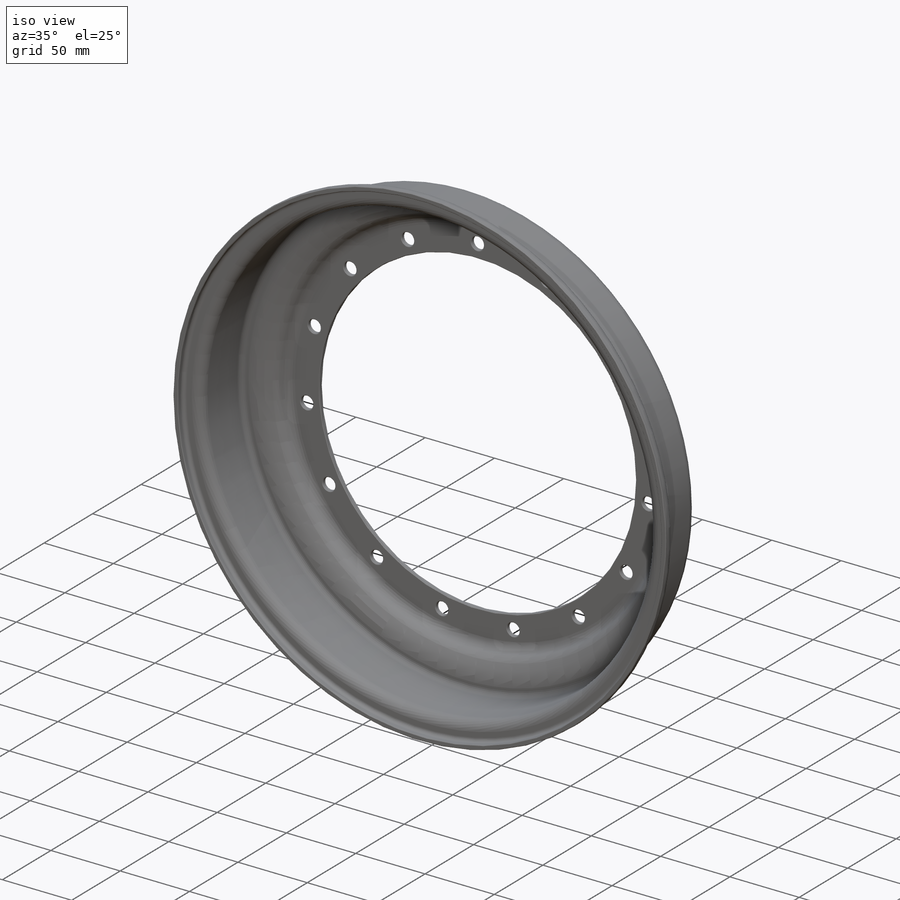
[diagram: iso view]
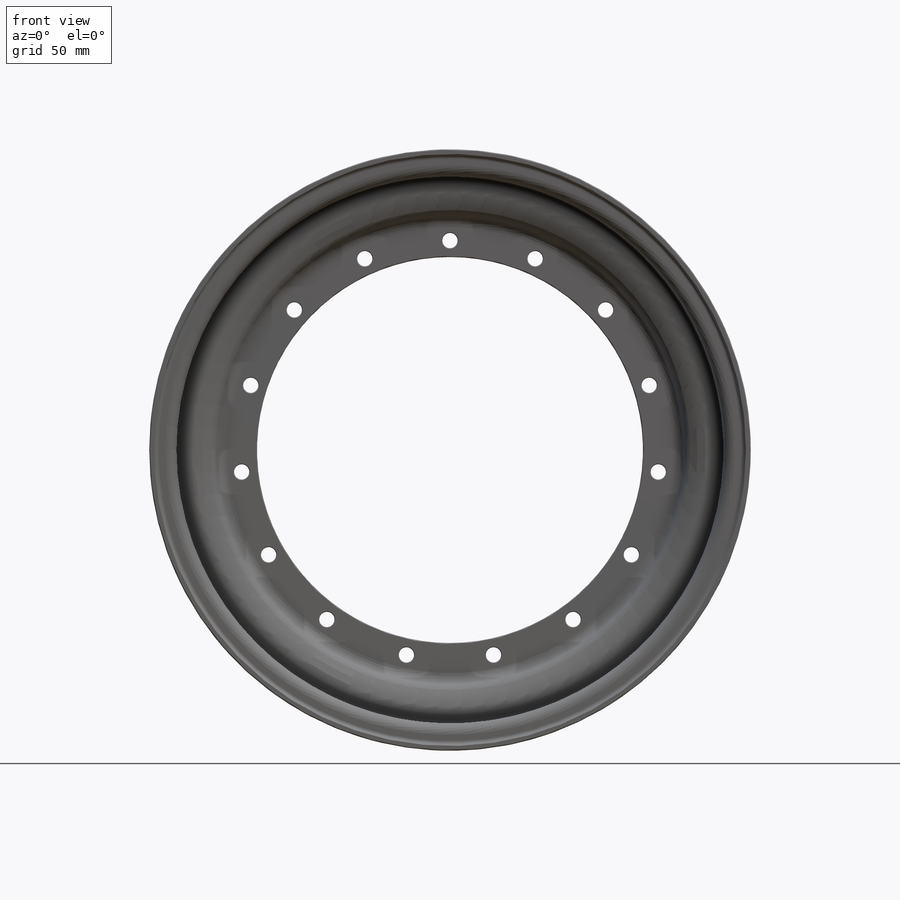
[diagram: front view]
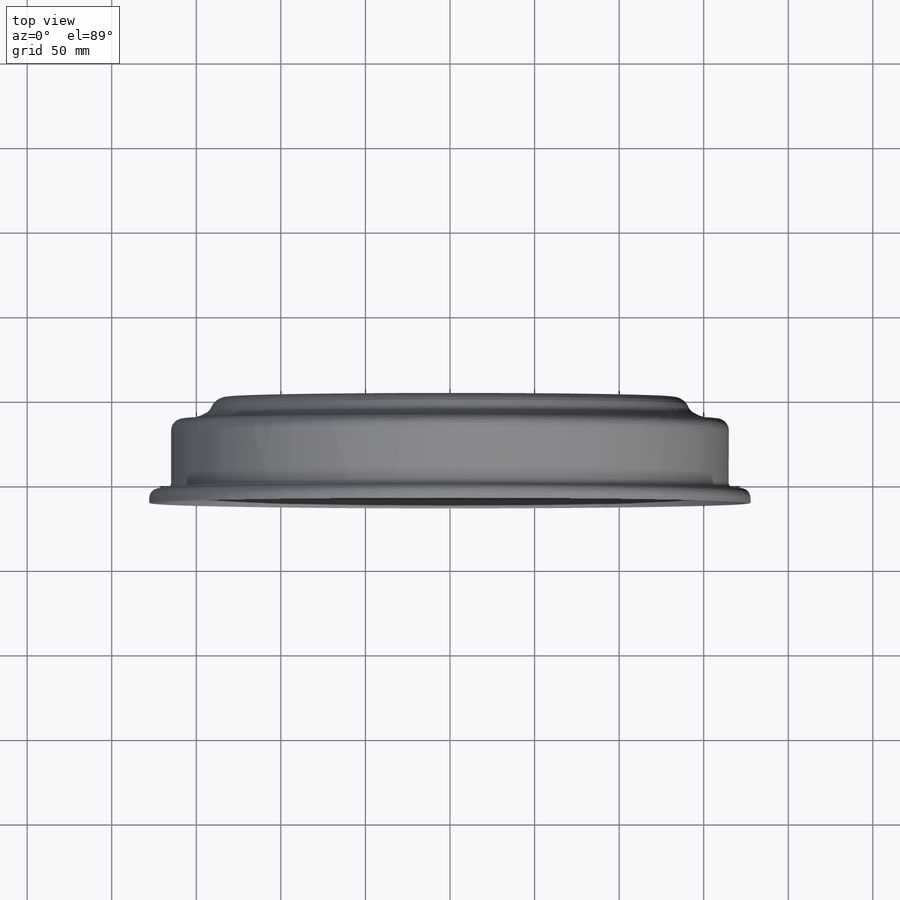
[diagram: top view]
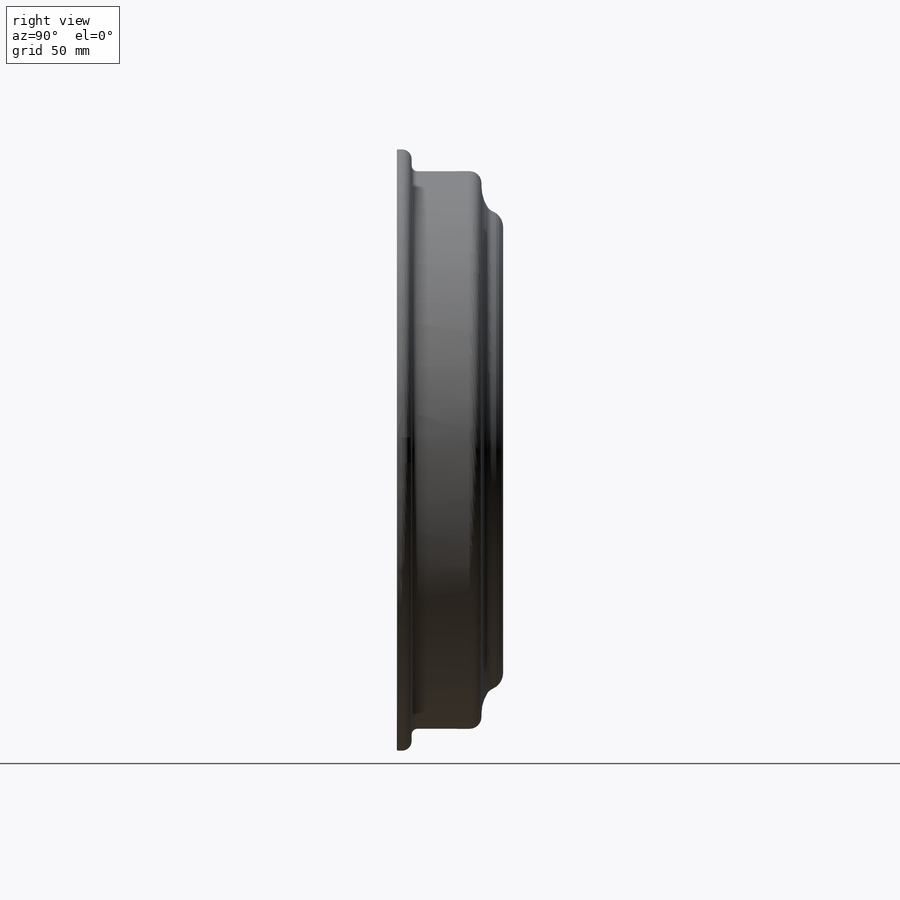
[diagram: right view]
SOLIDWORKS PART (.sldprt)
format: sldprt  version: not decoded by parser v0  size: 446,464 bytes
history: native  units: mm
features: sketch x2, material x1, revolve x1, cut_extrude x1, pattern_circular x1, chamfer x1 (+13 scaffold rows collapsed)
feature tree (20):
  scaffold x13  (default folders/planes/origin — collapsed)
  material  "6061-T6 (SS)"
  sketch  "Sketch1"  dims[c1.D1=114.3mm c1.D2=~17.51076mm c1.D3=11.2776mm c1.D4=~3.76428mm c2.D3=~9.38276mm c2.D5=~6.25856mm c2.D4=~2.89052mm c2.D6=~2.41046mm c2.D7=~1.82626mm c2.D8=~12.96416mm c2.D9=~9.87806mm c2.D10=30.861mm c2.D11=~4.84886mm c2.D12=3.81mm c2.D13=~8.08228mm c2.D14=3.048mm c2.D15=3.175mm]
  revolve  "Inner Rim"  Angle=360deg
  sketch  "Sketch2"  dims[D2=~8.99668mm D1=9.525mm]
  cut_extrude  "Mounting Hole"  [1 undecoded]
  pattern_circular  "Mounting Hole Pattern"  Count=15  [1 undecoded]
  chamfer  "Edge Chamfer"  Distance=0.39624mm
decode coverage: 5 of 6 modeling features carry decoded parameters
note: ~ marks probable driven/reference dimensions
note: 2 parameter values undecoded
note: suppression state not decoded; provenance and decode notes live in map.json
